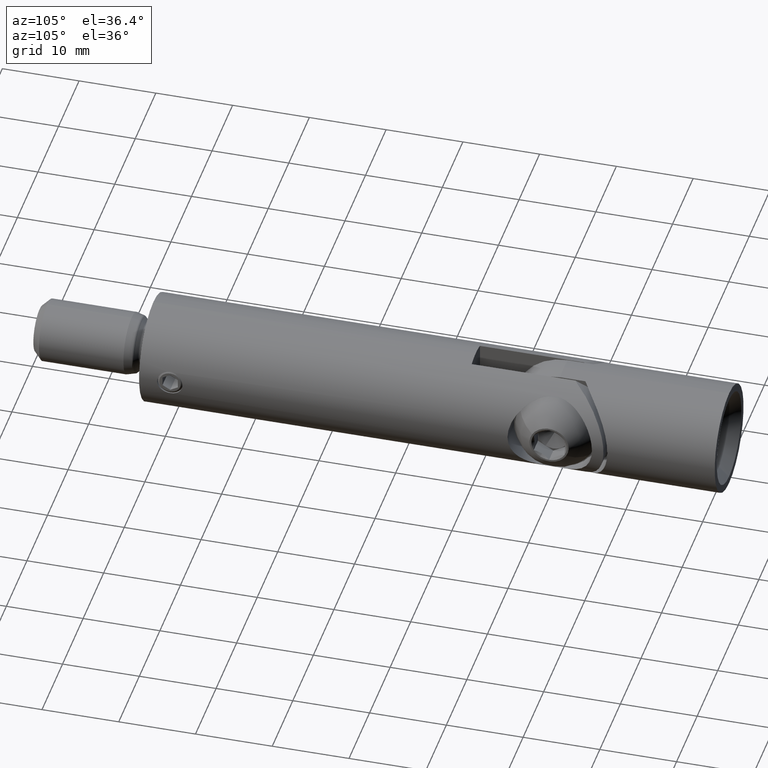
[diagram: clean part render]
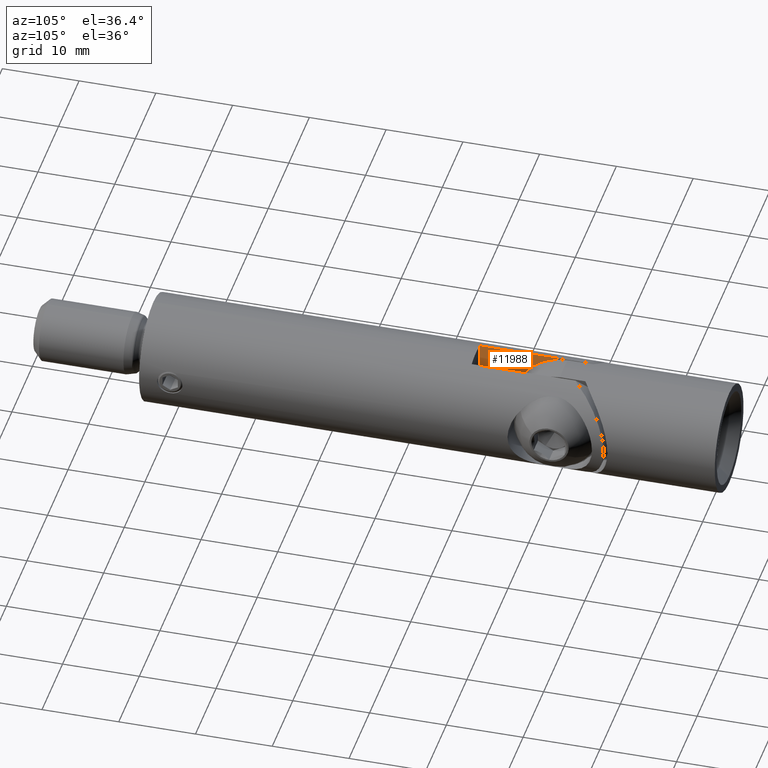
[diagram: same view with one face highlighted and labeled with its STEP entity id]
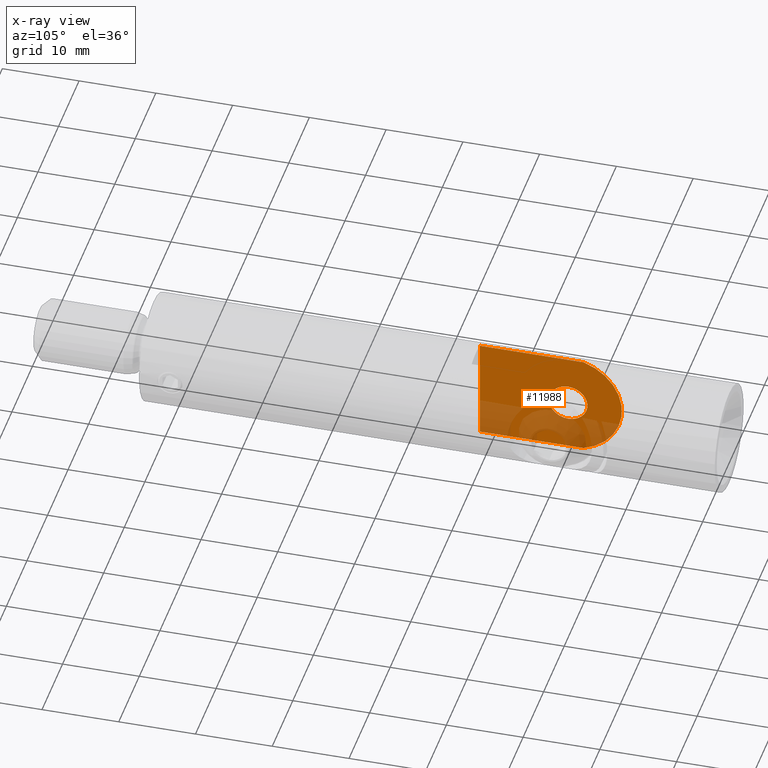
[diagram: x-ray of the same camera — body ghosted, the highlighted face saturated]
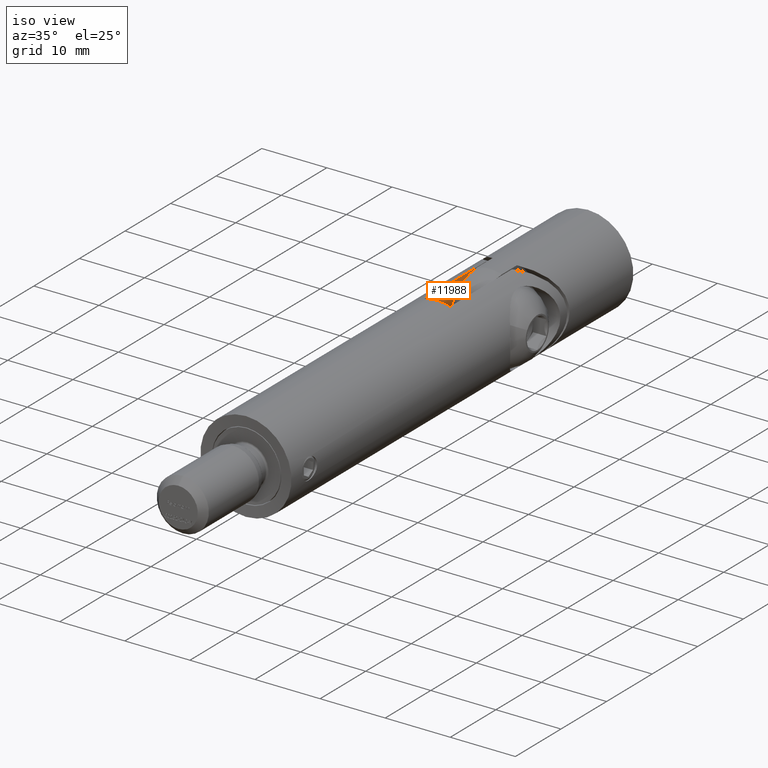
[diagram: same view with one face highlighted and labeled with its STEP entity id]
A machine part, auxiliary view. The second image highlights one B-rep face of the part: STEP entity #11988.
The next image is the same camera in x-ray: the body ghosted, the highlighted face saturated — about 30% of this face is hidden behind the body in this view.
A second angle (iso view) of the same face is appended — the face is thin or edge-on in the first view.
In plain terms, the highlighted planar face has unit normal (-1, -0, 0).
Its self-contained STEP definition (entity closure, byte-faithful):
#22 = DIRECTION ( 'NONE',  ( 1.000000000000000000, -0.0000000000000000000, -0.0000000000000000000 ) ) ;
#304 = CARTESIAN_POINT ( 'NONE',  ( -2.000000000000001800, 75.00000000000001400, -6.999999999999999100 ) ) ;
#922 = EDGE_CURVE ( 'NONE', #2362, #4051, #16835, .T. ) ;
#1945 = EDGE_CURVE ( 'NONE', #3120, #8587, #15496, .T. ) ;
#2362 = VERTEX_POINT ( 'NONE', #12466 ) ;
#2479 = EDGE_CURVE ( 'NONE', #11612, #16727, #4224, .T. ) ;
#2792 = VECTOR ( 'NONE', #16925, 1000.000000000000000 ) ;
#2950 = CIRCLE ( 'NONE', #16776, 2.499999999999988500 ) ;
#3120 = VERTEX_POINT ( 'NONE', #13404 ) ;
#4051 = VERTEX_POINT ( 'NONE', #9511 ) ;
#4224 = CIRCLE ( 'NONE', #13023, 6.999999999999999100 ) ;
#4282 = ORIENTED_EDGE ( 'NONE', *, *, #16894, .T. ) ;
#4314 = LINE ( 'NONE', #7255, #2792 ) ;
#4518 = DIRECTION ( 'NONE',  ( -0.0000000000000000000, -1.000000000000000000, -0.0000000000000000000 ) ) ;
#4535 = ORIENTED_EDGE ( 'NONE', *, *, #1945, .F. ) ;
#6533 = CARTESIAN_POINT ( 'NONE',  ( -2.000000000000001800, 53.50000000000000000, 0.0000000000000000000 ) ) ;
#7010 = CARTESIAN_POINT ( 'NONE',  ( -1.999999999999996700, 42.00000000000000000, -6.999999999999999100 ) ) ;
#7255 = CARTESIAN_POINT ( 'NONE',  ( -1.999999999999989600, 0.0000000000000000000, -6.708203932499372100 ) ) ;
#7409 = CARTESIAN_POINT ( 'NONE',  ( -1.999999999999989600, 0.0000000000000000000, 6.708203932499372100 ) ) ;
#7458 = DIRECTION ( 'NONE',  ( 1.239088197126290800E-016, -1.000000000000000000, 1.776356839400250900E-015 ) ) ;
#7718 = VECTOR ( 'NONE', #4518, 1000.000000000000000 ) ;
#8043 = DIRECTION ( 'NONE',  ( 1.000000000000000000, -0.0000000000000000000, -0.0000000000000000000 ) ) ;
#8158 = DIRECTION ( 'NONE',  ( 0.0000000000000000000, 0.0000000000000000000, -1.000000000000000000 ) ) ;
#8281 = CARTESIAN_POINT ( 'NONE',  ( -2.000000000000001800, 53.50000000000000000, 0.0000000000000000000 ) ) ;
#8512 = DIRECTION ( 'NONE',  ( -0.0000000000000000000, -0.0000000000000000000, 1.000000000000000000 ) ) ;
#8587 = VERTEX_POINT ( 'NONE', #11851 ) ;
#8595 = FACE_BOUND ( 'NONE', #12564, .T. ) ;
#8813 = EDGE_LOOP ( 'NONE', ( #4282, #12415, #17566, #4535 ) ) ;
#9511 = CARTESIAN_POINT ( 'NONE',  ( -2.000000000000001800, 53.50000000000000000, 2.499999999999988500 ) ) ;
#9665 = DIRECTION ( 'NONE',  ( 0.0000000000000000000, 0.0000000000000000000, -1.000000000000000000 ) ) ;
#11169 = EDGE_CURVE ( 'NONE', #4051, #2362, #2950, .T. ) ;
#11612 = VERTEX_POINT ( 'NONE', #12045 ) ;
#11670 = DIRECTION ( 'NONE',  ( 1.000000000000000000, 1.445602896647339400E-016, 0.0000000000000000000 ) ) ;
#11851 = CARTESIAN_POINT ( 'NONE',  ( -1.999999999999996700, 42.00000000000000000, 6.708203932499372100 ) ) ;
#11988 = ADVANCED_FACE ( 'NONE', ( #8595, #16172 ), #12834, .F. ) ;
#12045 = CARTESIAN_POINT ( 'NONE',  ( -1.999999999999998200, 55.49999999999998600, -6.708203932499372100 ) ) ;
#12301 = LINE ( 'NONE', #7409, #7718 ) ;
#12415 = ORIENTED_EDGE ( 'NONE', *, *, #2479, .T. ) ;
#12433 = EDGE_CURVE ( 'NONE', #16727, #8587, #12301, .T. ) ;
#12466 = CARTESIAN_POINT ( 'NONE',  ( -2.000000000000001800, 53.50000000000000000, -2.499999999999988500 ) ) ;
#12564 = EDGE_LOOP ( 'NONE', ( #15879, #16022 ) ) ;
#12753 = AXIS2_PLACEMENT_3D ( 'NONE', #304, #17032, #12770 ) ;
#12770 = DIRECTION ( 'NONE',  ( 1.445602896647339400E-016, -1.000000000000000000, 0.0000000000000000000 ) ) ;
#12834 = PLANE ( 'NONE',  #12753 ) ;
#13023 = AXIS2_PLACEMENT_3D ( 'NONE', #14359, #11670, #7458 ) ;
#13404 = CARTESIAN_POINT ( 'NONE',  ( -1.999999999999996700, 42.00000000000000000, -6.708203932499372100 ) ) ;
#13914 = CARTESIAN_POINT ( 'NONE',  ( -1.999999999999998200, 55.49999999999998600, 6.708203932499372100 ) ) ;
#14359 = CARTESIAN_POINT ( 'NONE',  ( -1.999999999999998200, 53.50000000000000000, 0.0000000000000000000 ) ) ;
#15496 = LINE ( 'NONE', #7010, #15713 ) ;
#15713 = VECTOR ( 'NONE', #8512, 1000.000000000000000 ) ;
#15879 = ORIENTED_EDGE ( 'NONE', *, *, #922, .F. ) ;
#16022 = ORIENTED_EDGE ( 'NONE', *, *, #11169, .F. ) ;
#16172 = FACE_OUTER_BOUND ( 'NONE', #8813, .T. ) ;
#16727 = VERTEX_POINT ( 'NONE', #13914 ) ;
#16776 = AXIS2_PLACEMENT_3D ( 'NONE', #8281, #22, #9665 ) ;
#16835 = CIRCLE ( 'NONE', #17391, 2.499999999999988500 ) ;
#16894 = EDGE_CURVE ( 'NONE', #3120, #11612, #4314, .T. ) ;
#16925 = DIRECTION ( 'NONE',  ( 0.0000000000000000000, 1.000000000000000000, 0.0000000000000000000 ) ) ;
#17032 = DIRECTION ( 'NONE',  ( -1.000000000000000000, -1.445602896647339400E-016, 0.0000000000000000000 ) ) ;
#17391 = AXIS2_PLACEMENT_3D ( 'NONE', #6533, #8043, #8158 ) ;
#17566 = ORIENTED_EDGE ( 'NONE', *, *, #12433, .T. ) ;